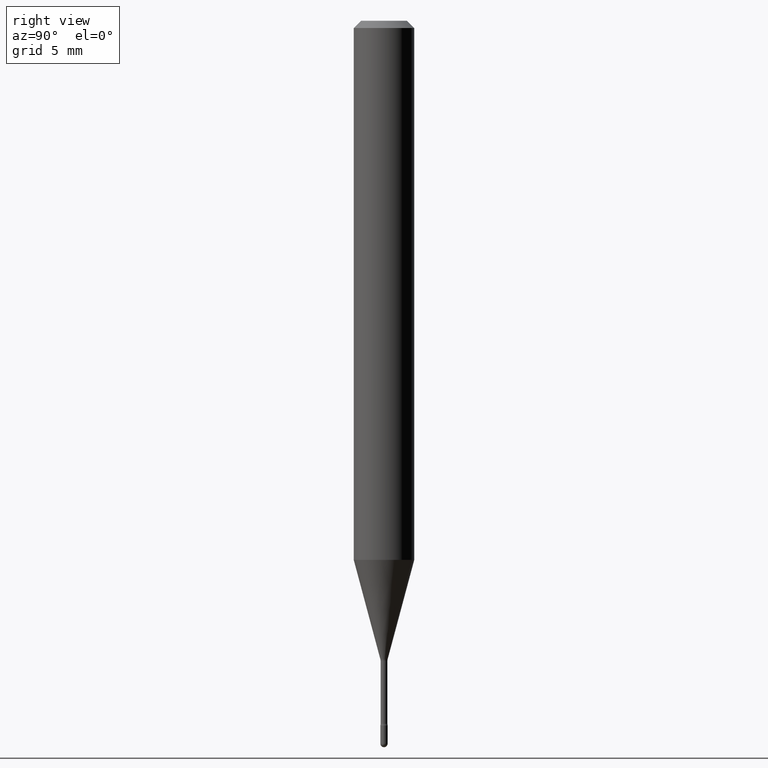
[diagram: clean part render]
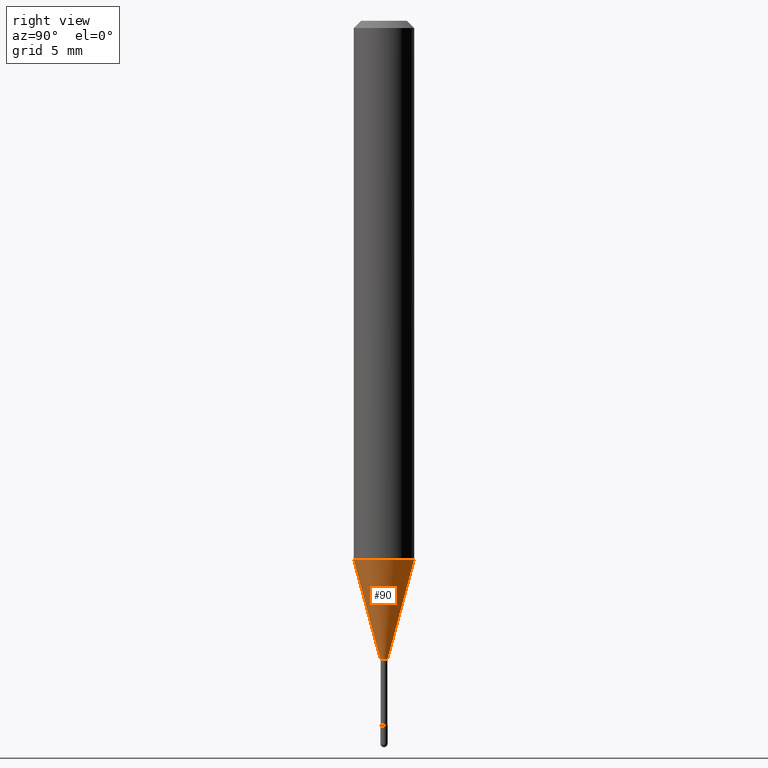
[diagram: same view with one face highlighted and labeled with its STEP entity id]
A machine part, right view. The second image highlights one B-rep face of the part: STEP entity #90.
In plain terms, the highlighted conical surface has half-angle 15 deg.
Its self-contained STEP definition (entity closure, byte-faithful):
#7 = CARTESIAN_POINT ( 'NONE',  ( -4.364351673553645030E-16, -0.06250000000000388578, -1.113057782720306310 ) ) ;
#11 = CIRCLE ( 'NONE', #440, 0.007561112605664015510 ) ;
#34 = VERTEX_POINT ( 'NONE', #7 ) ;
#52 = CARTESIAN_POINT ( 'NONE',  ( 5.372493636221911788E-17, 0.007561112605659413288, -1.318092501787273330 ) ) ;
#79 = ORIENTED_EDGE ( 'NONE', *, *, #454, .T. ) ;
#90 = ADVANCED_FACE ( 'NONE', ( #231 ), #228, .T. ) ;
#105 = DIRECTION ( 'NONE',  ( 1.839019923739598738E-15, 0.2588190451025247363, 0.9659258262890673130 ) ) ;
#116 = DIRECTION ( 'NONE',  ( -6.982962677686265922E-15, -1.000000000000000000, 4.370956789862821150E-15 ) ) ;
#129 = ORIENTED_EDGE ( 'NONE', *, *, #315, .F. ) ;
#144 = ORIENTED_EDGE ( 'NONE', *, *, #480, .T. ) ;
#151 = CARTESIAN_POINT ( 'NONE',  ( 2.489070731061546259E-16, 0.007561112605659413288, -1.318092501787273330 ) ) ;
#184 = EDGE_CURVE ( 'NONE', #34, #395, #562, .T. ) ;
#190 = CARTESIAN_POINT ( 'NONE',  ( 3.223252820316279077E-29, -4.602240406530144368E-15, -1.318092501787273330 ) ) ;
#196 = CARTESIAN_POINT ( 'NONE',  ( 2.721862564625396100E-29, -3.886342950507865712E-15, -1.113057782720306532 ) ) ;
#197 = AXIS2_PLACEMENT_3D ( 'NONE', #190, #239, #505 ) ;
#207 = DIRECTION ( 'NONE',  ( -2.445391970552670248E-29, 3.491591371842049924E-15, 1.000000000000000000 ) ) ;
#210 = EDGE_LOOP ( 'NONE', ( #79, #144, #405, #129 ) ) ;
#218 = AXIS2_PLACEMENT_3D ( 'NONE', #196, #371, #116 ) ;
#228 = CONICAL_SURFACE ( 'NONE', #197, 0.007561112605664015510, 0.2617993877991500740 ) ;
#231 = FACE_OUTER_BOUND ( 'NONE', #210, .T. ) ;
#232 = LINE ( 'NONE', #52, #274 ) ;
#239 = DIRECTION ( 'NONE',  ( -2.445391970552670248E-29, 3.491591371842049924E-15, 1.000000000000000000 ) ) ;
#274 = VECTOR ( 'NONE', #105, 39.37007874015748854 ) ;
#275 = DIRECTION ( 'NONE',  ( -1.807323732225328562E-15, -0.2588190451025179639, 0.9659258262890690894 ) ) ;
#285 = CARTESIAN_POINT ( 'NONE',  ( -5.279896712710274810E-17, -0.007561112605668618598, -1.318092501787273330 ) ) ;
#310 = CARTESIAN_POINT ( 'NONE',  ( -5.279896712710274810E-17, -0.007561112605668618598, -1.318092501787273330 ) ) ;
#315 = EDGE_CURVE ( 'NONE', #558, #34, #472, .T. ) ;
#327 = CARTESIAN_POINT ( 'NONE',  ( 4.440892098500896347E-16, 0.06249999999999611422, -1.113057782720306754 ) ) ;
#371 = DIRECTION ( 'NONE',  ( -2.445391970552670248E-29, 3.491591371842049924E-15, 1.000000000000000000 ) ) ;
#380 = VECTOR ( 'NONE', #275, 39.37007874015748854 ) ;
#395 = VERTEX_POINT ( 'NONE', #327 ) ;
#405 = ORIENTED_EDGE ( 'NONE', *, *, #184, .F. ) ;
#417 = CARTESIAN_POINT ( 'NONE',  ( 3.223252820316279077E-29, -4.602240406530144368E-15, -1.318092501787273330 ) ) ;
#440 = AXIS2_PLACEMENT_3D ( 'NONE', #417, #207, #469 ) ;
#454 = EDGE_CURVE ( 'NONE', #558, #566, #11, .T. ) ;
#469 = DIRECTION ( 'NONE',  ( -6.982962677686266711E-15, -1.000000000000000000, 0.000000000000000000 ) ) ;
#472 = LINE ( 'NONE', #310, #380 ) ;
#480 = EDGE_CURVE ( 'NONE', #566, #395, #232, .T. ) ;
#505 = DIRECTION ( 'NONE',  ( -6.982962677686266711E-15, -1.000000000000000000, 0.000000000000000000 ) ) ;
#558 = VERTEX_POINT ( 'NONE', #285 ) ;
#562 = CIRCLE ( 'NONE', #218, 0.06250000000000000000 ) ;
#566 = VERTEX_POINT ( 'NONE', #151 ) ;